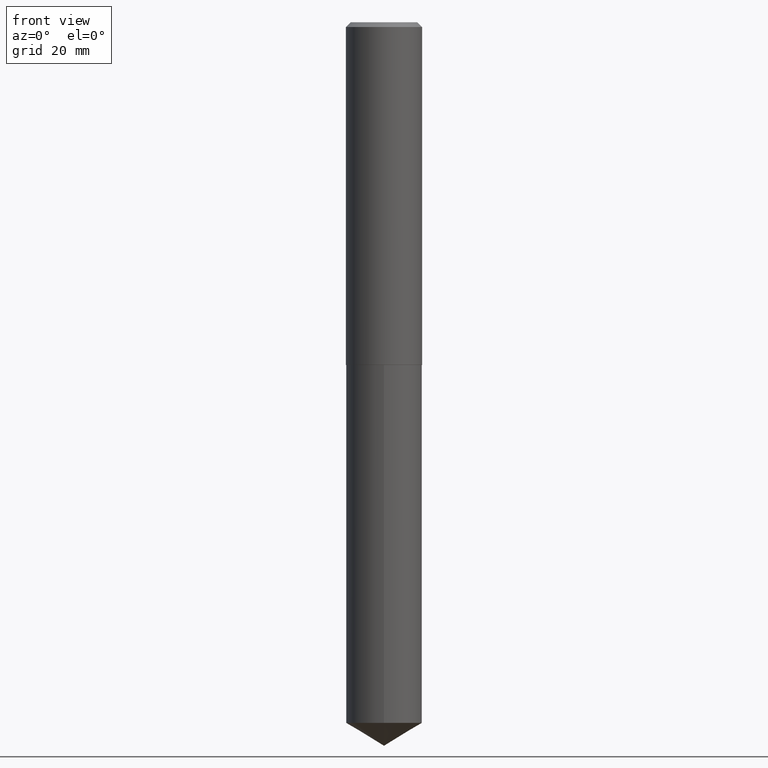
[diagram: clean part render]
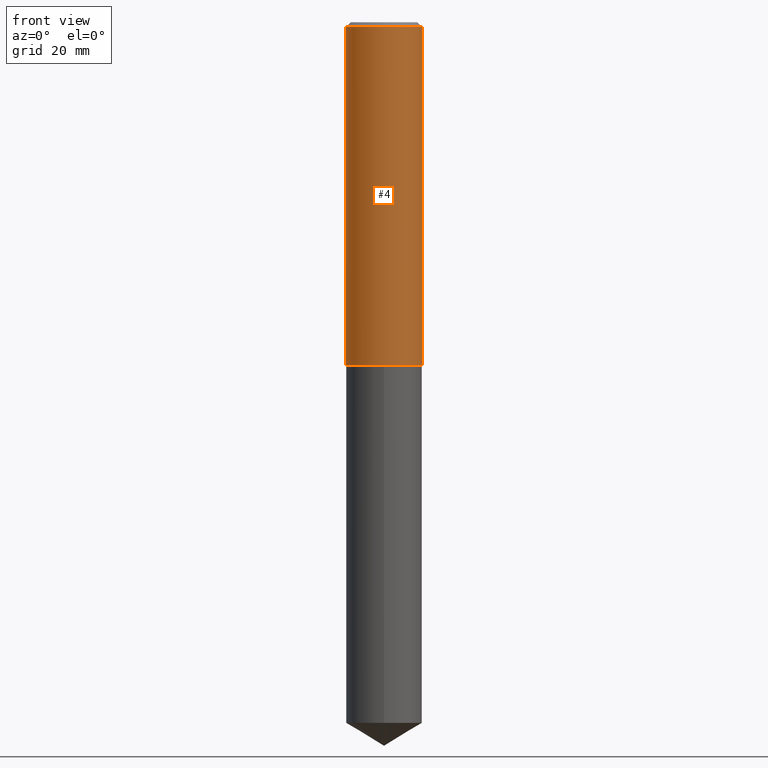
[diagram: same view with one face highlighted and labeled with its STEP entity id]
A machine part, front view. The second image highlights one B-rep face of the part: STEP entity #4.
In plain terms, the highlighted cylindrical surface (partial cylindrical patch) has radius 6.35 mm, axis along (-0, 0, 1).
Its self-contained STEP definition (entity closure, byte-faithful):
#4 = ADVANCED_FACE ( 'NONE', ( #228 ), #164, .T. ) ;
#5 = VERTEX_POINT ( 'NONE', #135 ) ;
#17 = VERTEX_POINT ( 'NONE', #263 ) ;
#34 = EDGE_CURVE ( 'NONE', #230, #5, #328, .T. ) ;
#38 = DIRECTION ( 'NONE',  ( -2.445468806185136877E-29, 3.491481338843145188E-15, 1.000000000000000000 ) ) ;
#42 = VERTEX_POINT ( 'NONE', #296 ) ;
#49 = CARTESIAN_POINT ( 'NONE',  ( -0.2500000000000001110, 1.776356839400251254E-15, -1.229733772563727146E-29 ) ) ;
#73 = EDGE_CURVE ( 'NONE', #5, #42, #101, .T. ) ;
#83 = DIRECTION ( 'NONE',  ( -2.445468806185136597E-29, 3.491481338843145583E-15, 1.000000000000000000 ) ) ;
#86 = CIRCLE ( 'NONE', #317, 0.2500000000000002776 ) ;
#101 = CIRCLE ( 'NONE', #223, 0.2500000000000000000 ) ;
#105 = ORIENTED_EDGE ( 'NONE', *, *, #34, .F. ) ;
#111 = CARTESIAN_POINT ( 'NONE',  ( 5.501082079513464541E-29, -7.854087271727656156E-15, -2.249499999999999833 ) ) ;
#122 = ORIENTED_EDGE ( 'NONE', *, *, #207, .T. ) ;
#123 = AXIS2_PLACEMENT_3D ( 'NONE', #195, #322, #294 ) ;
#135 = CARTESIAN_POINT ( 'NONE',  ( -0.2500000000000000000, -2.205241192383000191E-15, -0.03125000000000021511 ) ) ;
#145 = DIRECTION ( 'NONE',  ( 1.000000000000000000, -6.982962677686266711E-15, 0.000000000000000000 ) ) ;
#164 = CYLINDRICAL_SURFACE ( 'NONE', #123, 0.2500000000000001110 ) ;
#167 = DIRECTION ( 'NONE',  ( -2.445468806185136877E-29, 3.491481338843145188E-15, 1.000000000000000000 ) ) ;
#195 = CARTESIAN_POINT ( 'NONE',  ( 0.000000000000000000, 0.000000000000000000, 0.000000000000000000 ) ) ;
#207 = EDGE_CURVE ( 'NONE', #230, #17, #86, .T. ) ;
#223 = AXIS2_PLACEMENT_3D ( 'NONE', #299, #83, #309 ) ;
#228 = FACE_OUTER_BOUND ( 'NONE', #354, .T. ) ;
#230 = VERTEX_POINT ( 'NONE', #335 ) ;
#259 = VECTOR ( 'NONE', #38, 39.37007874015748143 ) ;
#263 = CARTESIAN_POINT ( 'NONE',  ( 0.2500000000000002776, -9.599827941149224411E-15, -2.249499999999999833 ) ) ;
#270 = DIRECTION ( 'NONE',  ( -2.445468806185136597E-29, 3.491481338843145583E-15, 1.000000000000000000 ) ) ;
#277 = CARTESIAN_POINT ( 'NONE',  ( 0.2500000000000001110, -1.745740669421567664E-15, 1.219044193948984649E-29 ) ) ;
#285 = ORIENTED_EDGE ( 'NONE', *, *, #73, .F. ) ;
#294 = DIRECTION ( 'NONE',  ( 1.000000000000000000, -6.982962677686267499E-15, 4.876176775795936353E-29 ) ) ;
#296 = CARTESIAN_POINT ( 'NONE',  ( 0.2500000000000000000, -1.854849461260415778E-15, -0.03125000000000021511 ) ) ;
#299 = CARTESIAN_POINT ( 'NONE',  ( 7.642090019328604414E-31, -1.091087918388490513E-16, -0.03125000000000021511 ) ) ;
#309 = DIRECTION ( 'NONE',  ( 1.000000000000000000, -6.982962677686266711E-15, 0.000000000000000000 ) ) ;
#317 = AXIS2_PLACEMENT_3D ( 'NONE', #111, #270, #145 ) ;
#320 = ORIENTED_EDGE ( 'NONE', *, *, #358, .T. ) ;
#322 = DIRECTION ( 'NONE',  ( -2.445468806185136597E-29, 3.491481338843145583E-15, 1.000000000000000000 ) ) ;
#328 = LINE ( 'NONE', #49, #383 ) ;
#335 = CARTESIAN_POINT ( 'NONE',  ( -0.2500000000000002776, -6.077730432327403325E-15, -2.249499999999999833 ) ) ;
#345 = LINE ( 'NONE', #277, #259 ) ;
#354 = EDGE_LOOP ( 'NONE', ( #105, #122, #320, #285 ) ) ;
#358 = EDGE_CURVE ( 'NONE', #17, #42, #345, .T. ) ;
#383 = VECTOR ( 'NONE', #167, 39.37007874015748143 ) ;